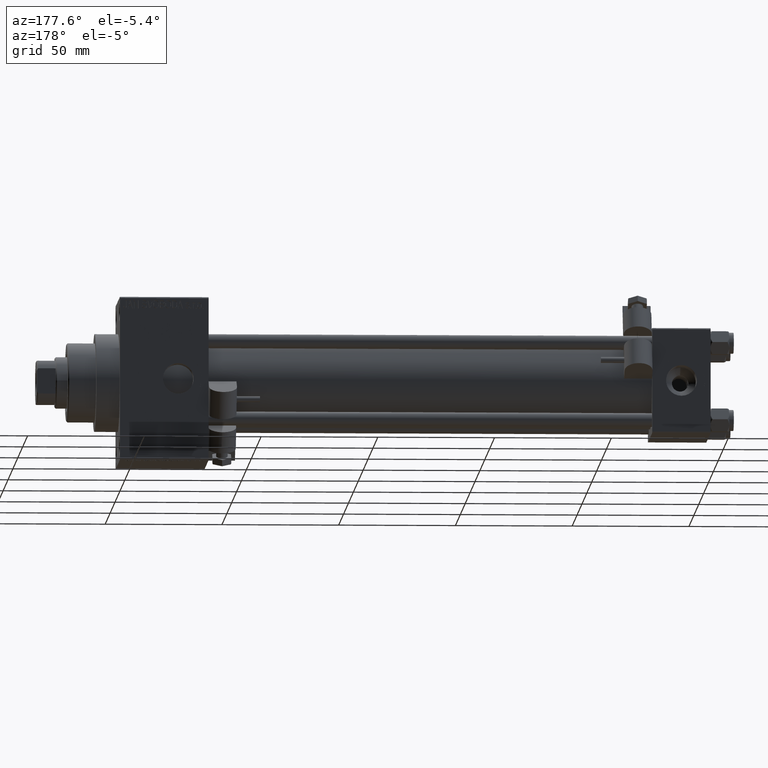
[diagram: clean part render]
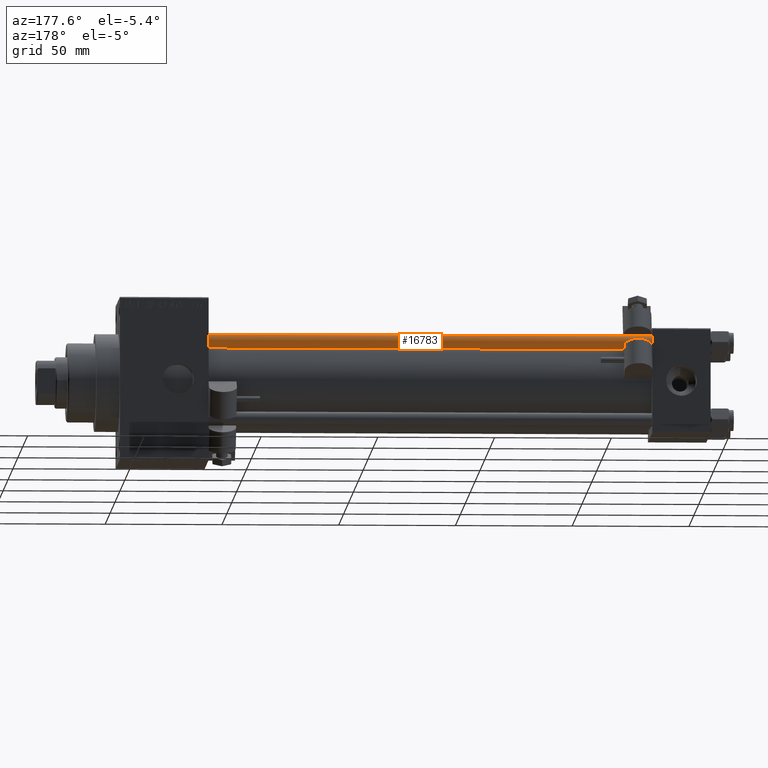
[diagram: same view with one face highlighted and labeled with its STEP entity id]
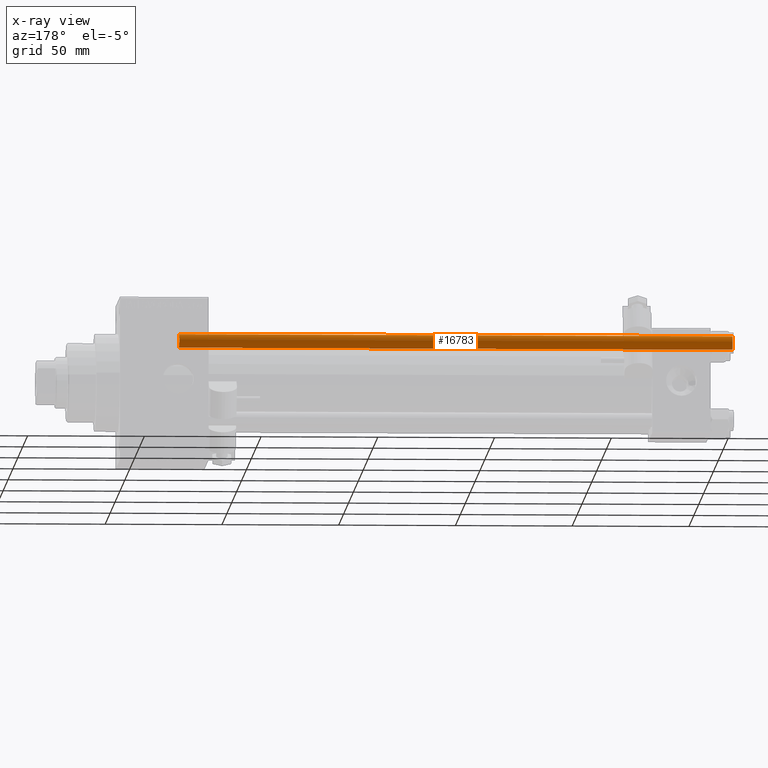
[diagram: x-ray of the same camera — body ghosted, the highlighted face saturated]
A machine part, auxiliary view. The second image highlights one B-rep face of the part: STEP entity #16783.
The next image is the same camera in x-ray: the body ghosted, the highlighted face saturated — about 0% of this face is hidden behind the body in this view.
In plain terms, the highlighted cylindrical surface (edge-blend (fillet) strip) has radius 3 mm, axis along (-1, -0, 0).
Its self-contained STEP definition (entity closure, byte-faithful):
#755 = CARTESIAN_POINT ( 'NONE',  ( -3.000000000000000444, 0.000000000000000000, 238.0000000000000000 ) ) ;
#865 = CARTESIAN_POINT ( 'NONE',  ( 3.000000000000000444, 3.673940397442060361E-16, 0.5000000000000281997 ) ) ;
#904 = EDGE_LOOP ( 'NONE', ( #6888, #22259, #32722, #9024 ) ) ;
#1328 = CARTESIAN_POINT ( 'NONE',  ( 0.000000000000000000, 0.000000000000000000, 237.5000000000000284 ) ) ;
#2885 = VECTOR ( 'NONE', #20502, 1000.000000000000000 ) ;
#3506 = VERTEX_POINT ( 'NONE', #9129 ) ;
#4461 = VERTEX_POINT ( 'NONE', #35349 ) ;
#4477 = DIRECTION ( 'NONE',  ( -1.000000000000000000, 0.000000000000000000, 0.000000000000000000 ) ) ;
#5669 = CARTESIAN_POINT ( 'NONE',  ( 3.000000000000000444, 3.673940397442060361E-16, 237.5000000000000284 ) ) ;
#6888 = ORIENTED_EDGE ( 'NONE', *, *, #27884, .T. ) ;
#7296 = CARTESIAN_POINT ( 'NONE',  ( 0.000000000000000000, 0.000000000000000000, 238.0000000000000000 ) ) ;
#7896 = LINE ( 'NONE', #8641, #19975 ) ;
#8299 = CYLINDRICAL_SURFACE ( 'NONE', #38598, 3.000000000000000444 ) ;
#8641 = CARTESIAN_POINT ( 'NONE',  ( 3.000000000000000444, 3.673940397442060361E-16, 238.0000000000000000 ) ) ;
#9024 = ORIENTED_EDGE ( 'NONE', *, *, #10273, .F. ) ;
#9129 = CARTESIAN_POINT ( 'NONE',  ( -3.000000000000000444, 0.000000000000000000, 237.5000000000000284 ) ) ;
#10273 = EDGE_CURVE ( 'NONE', #3506, #4461, #35726, .T. ) ;
#11564 = CIRCLE ( 'NONE', #14778, 3.000000000000000444 ) ;
#14778 = AXIS2_PLACEMENT_3D ( 'NONE', #49116, #26284, #21973 ) ;
#16241 = DIRECTION ( 'NONE',  ( -0.000000000000000000, -0.000000000000000000, -1.000000000000000000 ) ) ;
#16783 = ADVANCED_FACE ( 'NONE', ( #42008 ), #8299, .T. ) ;
#19975 = VECTOR ( 'NONE', #16241, 1000.000000000000000 ) ;
#20502 = DIRECTION ( 'NONE',  ( -0.000000000000000000, -0.000000000000000000, -1.000000000000000000 ) ) ;
#21973 = DIRECTION ( 'NONE',  ( 1.000000000000000000, 0.000000000000000000, 0.000000000000000000 ) ) ;
#22259 = ORIENTED_EDGE ( 'NONE', *, *, #28153, .T. ) ;
#22499 = CIRCLE ( 'NONE', #36279, 3.000000000000000444 ) ;
#22690 = VERTEX_POINT ( 'NONE', #5669 ) ;
#24378 = DIRECTION ( 'NONE',  ( 0.000000000000000000, 0.000000000000000000, -1.000000000000000000 ) ) ;
#26284 = DIRECTION ( 'NONE',  ( -0.000000000000000000, -0.000000000000000000, 1.000000000000000000 ) ) ;
#27686 = DIRECTION ( 'NONE',  ( 1.000000000000000000, 0.000000000000000000, 0.000000000000000000 ) ) ;
#27884 = EDGE_CURVE ( 'NONE', #3506, #22690, #22499, .T. ) ;
#28153 = EDGE_CURVE ( 'NONE', #22690, #48784, #7896, .T. ) ;
#32722 = ORIENTED_EDGE ( 'NONE', *, *, #45804, .T. ) ;
#35349 = CARTESIAN_POINT ( 'NONE',  ( -3.000000000000000444, 0.000000000000000000, 0.5000000000000281997 ) ) ;
#35726 = LINE ( 'NONE', #755, #2885 ) ;
#36279 = AXIS2_PLACEMENT_3D ( 'NONE', #1328, #24378, #27686 ) ;
#38598 = AXIS2_PLACEMENT_3D ( 'NONE', #7296, #38712, #4477 ) ;
#38712 = DIRECTION ( 'NONE',  ( -0.000000000000000000, -0.000000000000000000, -1.000000000000000000 ) ) ;
#42008 = FACE_OUTER_BOUND ( 'NONE', #904, .T. ) ;
#45804 = EDGE_CURVE ( 'NONE', #48784, #4461, #11564, .T. ) ;
#48784 = VERTEX_POINT ( 'NONE', #865 ) ;
#49116 = CARTESIAN_POINT ( 'NONE',  ( 0.000000000000000000, 0.000000000000000000, 0.5000000000000281997 ) ) ;